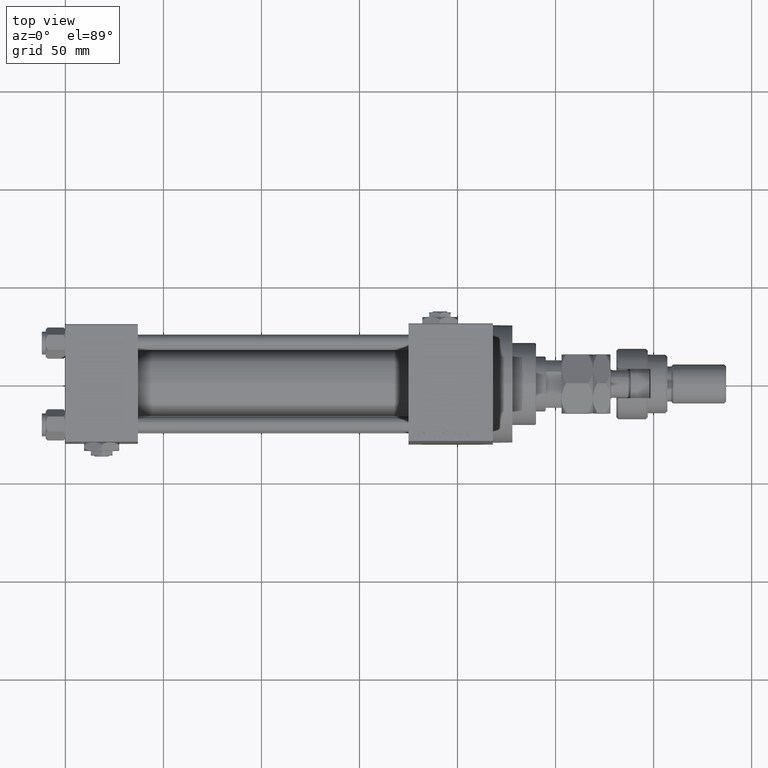
[diagram: clean part render]
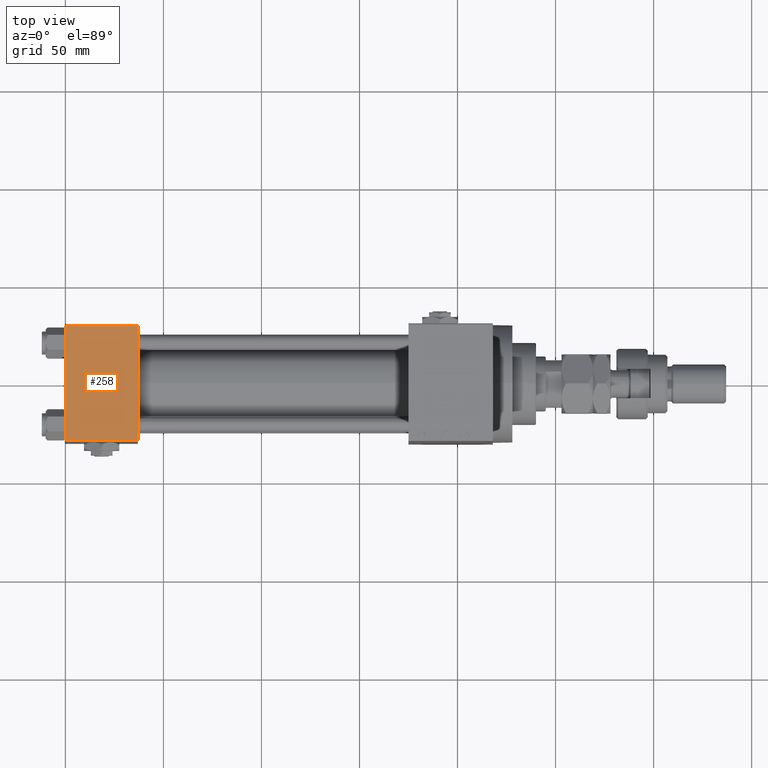
[diagram: same view with one face highlighted and labeled with its STEP entity id]
A machine part, top view. The second image highlights one B-rep face of the part: STEP entity #258.
In plain terms, the highlighted planar face has unit normal (0, 0, -1).
Its self-contained STEP definition (entity closure, byte-faithful):
#258 = ADVANCED_FACE ( 'NONE', ( #45325 ), #42417, .F. ) ;
#854 = CARTESIAN_POINT ( 'NONE',  ( 0.000000000000000000, 29.99999999999999289, 30.00000000000000000 ) ) ;
#872 = LINE ( 'NONE', #25776, #7163 ) ;
#1729 = AXIS2_PLACEMENT_3D ( 'NONE', #6487, #26166, #17542 ) ;
#4997 = ORIENTED_EDGE ( 'NONE', *, *, #39506, .F. ) ;
#5800 = VERTEX_POINT ( 'NONE', #5944 ) ;
#5944 = CARTESIAN_POINT ( 'NONE',  ( 37.00000000000000000, -29.49999999999998579, 29.99999999999999289 ) ) ;
#6487 = CARTESIAN_POINT ( 'NONE',  ( 37.00000000000000000, 29.99999999999999289, 30.00000000000000000 ) ) ;
#7163 = VECTOR ( 'NONE', #49876, 1000.000000000000000 ) ;
#11956 = LINE ( 'NONE', #16945, #44806 ) ;
#12912 = LINE ( 'NONE', #854, #21098 ) ;
#13032 = EDGE_CURVE ( 'NONE', #47580, #5800, #11956, .T. ) ;
#14762 = CARTESIAN_POINT ( 'NONE',  ( 37.00000000000000000, 29.99999999999999289, 30.00000000000000000 ) ) ;
#16945 = CARTESIAN_POINT ( 'NONE',  ( 37.00000000000000000, -29.50000000000000000, 29.99999999999999289 ) ) ;
#17542 = DIRECTION ( 'NONE',  ( 0.000000000000000000, 1.000000000000000000, 1.156482317317871725E-16 ) ) ;
#18702 = DIRECTION ( 'NONE',  ( 0.000000000000000000, -1.000000000000000000, -1.156482317317871725E-16 ) ) ;
#18841 = CARTESIAN_POINT ( 'NONE',  ( 0.000000000000000000, 29.49999999999999289, 30.00000000000000000 ) ) ;
#19767 = CARTESIAN_POINT ( 'NONE',  ( 0.000000000000000000, -29.49999999999998579, 29.99999999999999289 ) ) ;
#19844 = VECTOR ( 'NONE', #18702, 1000.000000000000000 ) ;
#20102 = VERTEX_POINT ( 'NONE', #18841 ) ;
#21098 = VECTOR ( 'NONE', #29178, 1000.000000000000000 ) ;
#23034 = ORIENTED_EDGE ( 'NONE', *, *, #25363, .T. ) ;
#25142 = EDGE_LOOP ( 'NONE', ( #23034, #27641, #4997, #25915 ) ) ;
#25363 = EDGE_CURVE ( 'NONE', #20102, #47580, #12912, .T. ) ;
#25776 = CARTESIAN_POINT ( 'NONE',  ( 0.000000000000000000, 29.49999999999999289, 30.00000000000000000 ) ) ;
#25915 = ORIENTED_EDGE ( 'NONE', *, *, #37452, .T. ) ;
#26166 = DIRECTION ( 'NONE',  ( 0.000000000000000000, 1.156482317317871725E-16, -1.000000000000000000 ) ) ;
#27641 = ORIENTED_EDGE ( 'NONE', *, *, #13032, .T. ) ;
#28222 = DIRECTION ( 'NONE',  ( 1.000000000000000000, 0.000000000000000000, 0.000000000000000000 ) ) ;
#29178 = DIRECTION ( 'NONE',  ( 0.000000000000000000, -1.000000000000000000, -1.156482317317871725E-16 ) ) ;
#37452 = EDGE_CURVE ( 'NONE', #45448, #20102, #872, .T. ) ;
#39506 = EDGE_CURVE ( 'NONE', #45448, #5800, #46490, .T. ) ;
#42417 = PLANE ( 'NONE',  #1729 ) ;
#44806 = VECTOR ( 'NONE', #28222, 1000.000000000000000 ) ;
#45325 = FACE_OUTER_BOUND ( 'NONE', #25142, .T. ) ;
#45448 = VERTEX_POINT ( 'NONE', #48770 ) ;
#46490 = LINE ( 'NONE', #14762, #19844 ) ;
#47580 = VERTEX_POINT ( 'NONE', #19767 ) ;
#48770 = CARTESIAN_POINT ( 'NONE',  ( 37.00000000000000000, 29.49999999999999289, 30.00000000000000000 ) ) ;
#49876 = DIRECTION ( 'NONE',  ( -1.000000000000000000, 0.000000000000000000, 0.000000000000000000 ) ) ;